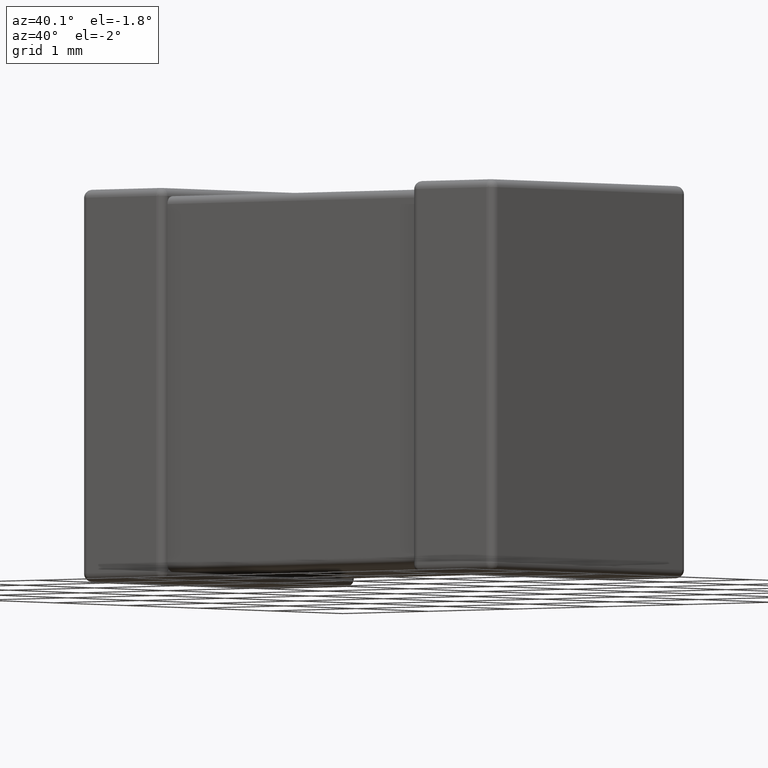
[diagram: clean part render]
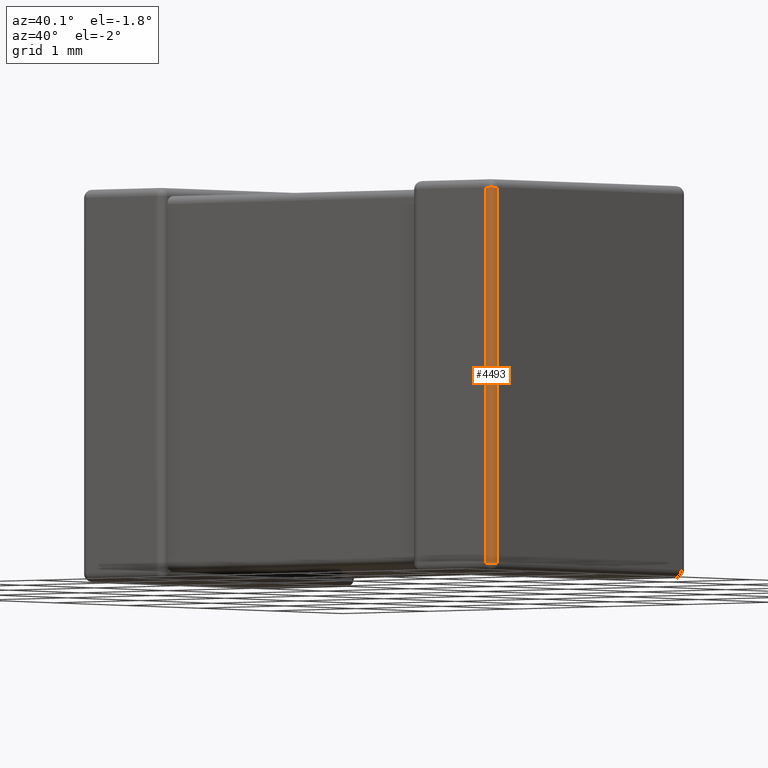
[diagram: same view with one face highlighted and labeled with its STEP entity id]
A machine part, auxiliary view. The second image highlights one B-rep face of the part: STEP entity #4493.
In plain terms, the highlighted cylindrical surface (edge-blend (fillet) strip) has radius 0.0728 mm, axis along (0, 0, -1).
Its self-contained STEP definition (entity closure, byte-faithful):
#6 = DIRECTION ( 'NONE',  ( 0.000000000000000000, 0.000000000000000000, -1.000000000000000000 ) ) ;
#221 = ORIENTED_EDGE ( 'NONE', *, *, #2969, .F. ) ;
#596 = CARTESIAN_POINT ( 'NONE',  ( 4.727199999999999847, 0.000000000000000000, -3.427200000000000024 ) ) ;
#728 = DIRECTION ( 'NONE',  ( -1.000000000000000000, 0.000000000000000000, 0.000000000000000000 ) ) ;
#757 = DIRECTION ( 'NONE',  ( -0.000000000000000000, 0.000000000000000000, 1.000000000000000000 ) ) ;
#947 = DIRECTION ( 'NONE',  ( -1.000000000000000000, 0.000000000000000000, 0.000000000000000000 ) ) ;
#1017 = CARTESIAN_POINT ( 'NONE',  ( 4.727199999999999847, 0.07280000000000000360, -0.07280000000000000360 ) ) ;
#1087 = EDGE_LOOP ( 'NONE', ( #221, #1602, #4312, #2644 ) ) ;
#1089 = DIRECTION ( 'NONE',  ( 0.000000000000000000, 0.000000000000000000, -1.000000000000000000 ) ) ;
#1214 = CARTESIAN_POINT ( 'NONE',  ( 4.727199999999999847, 0.000000000000000000, -0.07280000000000000360 ) ) ;
#1245 = CARTESIAN_POINT ( 'NONE',  ( 4.799999999999999822, 0.07280000000000000360, -0.07280000000000000360 ) ) ;
#1469 = VERTEX_POINT ( 'NONE', #2346 ) ;
#1522 = AXIS2_PLACEMENT_3D ( 'NONE', #2520, #6, #728 ) ;
#1544 = CARTESIAN_POINT ( 'NONE',  ( 4.727199999999999847, 0.07280000000000000360, 0.000000000000000000 ) ) ;
#1602 = ORIENTED_EDGE ( 'NONE', *, *, #3797, .F. ) ;
#1861 = AXIS2_PLACEMENT_3D ( 'NONE', #1544, #3022, #947 ) ;
#1907 = DIRECTION ( 'NONE',  ( -0.000000000000000000, -0.000000000000000000, 1.000000000000000000 ) ) ;
#2082 = VECTOR ( 'NONE', #1907, 1000.000000000000000 ) ;
#2191 = DIRECTION ( 'NONE',  ( 1.000000000000000000, 0.000000000000000000, 0.000000000000000000 ) ) ;
#2346 = CARTESIAN_POINT ( 'NONE',  ( 4.799999999999999822, 0.07280000000000000360, -3.427200000000000024 ) ) ;
#2504 = AXIS2_PLACEMENT_3D ( 'NONE', #1017, #757, #2191 ) ;
#2520 = CARTESIAN_POINT ( 'NONE',  ( 4.727199999999999847, 0.07280000000000000360, -3.427200000000000024 ) ) ;
#2644 = ORIENTED_EDGE ( 'NONE', *, *, #4464, .F. ) ;
#2697 = LINE ( 'NONE', #3678, #2082 ) ;
#2796 = VERTEX_POINT ( 'NONE', #1214 ) ;
#2830 = VECTOR ( 'NONE', #1089, 1000.000000000000000 ) ;
#2915 = EDGE_CURVE ( 'NONE', #2796, #4139, #4512, .T. ) ;
#2969 = EDGE_CURVE ( 'NONE', #1469, #4575, #3249, .T. ) ;
#3022 = DIRECTION ( 'NONE',  ( 0.000000000000000000, 0.000000000000000000, -1.000000000000000000 ) ) ;
#3249 = CIRCLE ( 'NONE', #1522, 0.07279999999999960114 ) ;
#3535 = LINE ( 'NONE', #4617, #2830 ) ;
#3678 = CARTESIAN_POINT ( 'NONE',  ( 4.727199999999999847, 0.000000000000000000, 0.000000000000000000 ) ) ;
#3797 = EDGE_CURVE ( 'NONE', #4139, #1469, #3535, .T. ) ;
#4049 = FACE_OUTER_BOUND ( 'NONE', #1087, .T. ) ;
#4102 = CYLINDRICAL_SURFACE ( 'NONE', #1861, 0.07279999999999960114 ) ;
#4139 = VERTEX_POINT ( 'NONE', #1245 ) ;
#4312 = ORIENTED_EDGE ( 'NONE', *, *, #2915, .F. ) ;
#4464 = EDGE_CURVE ( 'NONE', #4575, #2796, #2697, .T. ) ;
#4493 = ADVANCED_FACE ( 'NONE', ( #4049 ), #4102, .T. ) ;
#4512 = CIRCLE ( 'NONE', #2504, 0.07279999999999960114 ) ;
#4575 = VERTEX_POINT ( 'NONE', #596 ) ;
#4617 = CARTESIAN_POINT ( 'NONE',  ( 4.799999999999999822, 0.07280000000000000360, 0.000000000000000000 ) ) ;